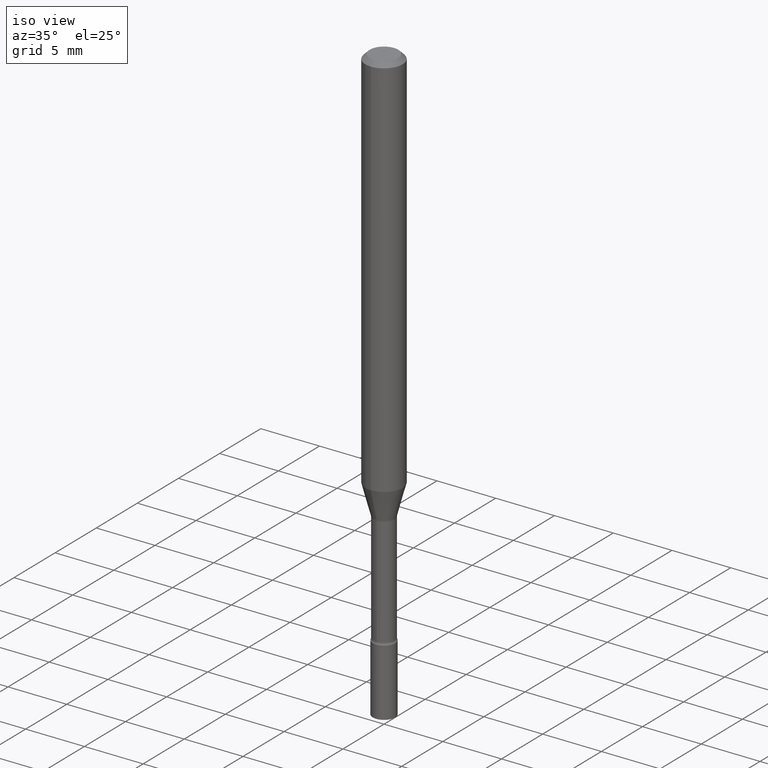
[diagram: clean part render]
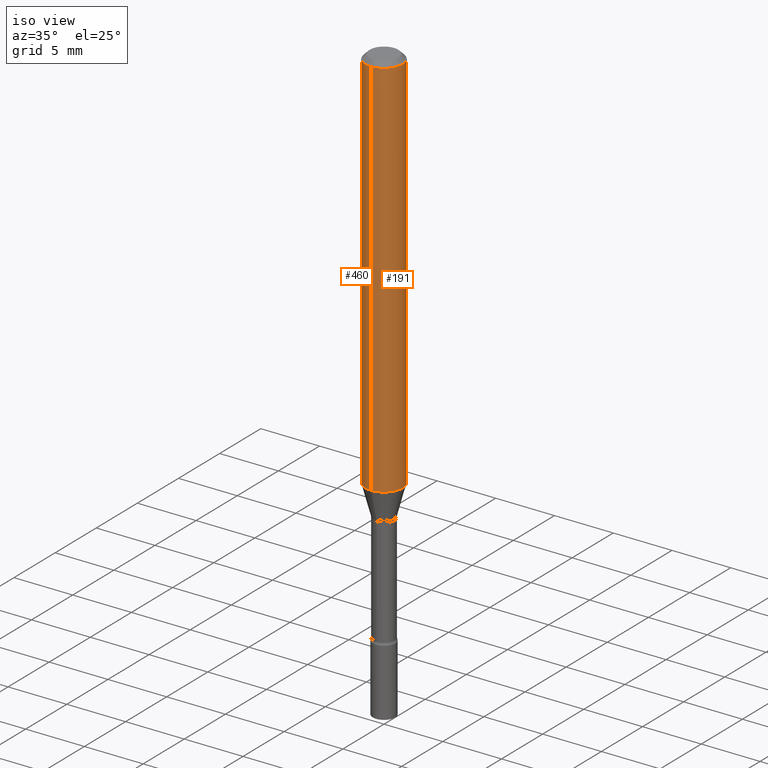
[diagram: same view with one multi-face feature highlighted, each face labeled with its STEP entity id]
A machine part, iso view. The highlighted faces form ONE feature: a constant-radius fillet chain: 2 tangent blend faces with common blend radius 1.5875 mm. The faces share edges in the B-rep.
Their STEP definitions:
[1] entity #460 (Cylinder):
#9 = VERTEX_POINT ( 'NONE', #94 ) ;
#40 = DIRECTION ( 'NONE',  ( -2.445457175457371238E-29, 3.491497994707285669E-15, 1.000000000000000000 ) ) ;
#41 = EDGE_LOOP ( 'NONE', ( #209, #178, #432, #296 ) ) ;
#53 = DIRECTION ( 'NONE',  ( -2.445457175457371238E-29, 3.491497994707285669E-15, 1.000000000000000000 ) ) ;
#77 = VERTEX_POINT ( 'NONE', #224 ) ;
#89 = VERTEX_POINT ( 'NONE', #388 ) ;
#90 = DIRECTION ( 'NONE',  ( -6.982962677686265922E-15, -1.000000000000000000, 3.491497994707285669E-15 ) ) ;
#93 = DIRECTION ( 'NONE',  ( -2.445457175457371238E-29, 3.491497994707285669E-15, 1.000000000000000000 ) ) ;
#94 = CARTESIAN_POINT ( 'NONE',  ( -4.364351673553601150E-16, -0.06250000000000456579, -1.298301615493748118 ) ) ;
#133 = LINE ( 'NONE', #404, #425 ) ;
#136 = CARTESIAN_POINT ( 'NONE',  ( 3.668185763186064161E-31, -5.237246992060938980E-17, -0.01500000000000003067 ) ) ;
#151 = DIRECTION ( 'NONE',  ( -6.982962677686265922E-15, -1.000000000000000000, 4.370956789862821150E-15 ) ) ;
#156 = VERTEX_POINT ( 'NONE', #343 ) ;
#161 = EDGE_CURVE ( 'NONE', #156, #9, #261, .T. ) ;
#167 = DIRECTION ( 'NONE',  ( -6.982962677686265922E-15, -1.000000000000000000, 3.483106191921935554E-15 ) ) ;
#178 = ORIENTED_EDGE ( 'NONE', *, *, #161, .T. ) ;
#206 = CARTESIAN_POINT ( 'NONE',  ( 4.440892098500625669E-16, 0.06250000000000000000, -2.182186246692053543E-16 ) ) ;
#209 = ORIENTED_EDGE ( 'NONE', *, *, #342, .F. ) ;
#224 = CARTESIAN_POINT ( 'NONE',  ( 4.440892098500945650E-16, 0.06249999999999995143, -0.01500000000000024751 ) ) ;
#251 = CIRCLE ( 'NONE', #329, 0.06250000000000000000 ) ;
#257 = CARTESIAN_POINT ( 'NONE',  ( 0.000000000000000000, 0.000000000000000000, 0.000000000000000000 ) ) ;
#261 = CIRCLE ( 'NONE', #437, 0.06250000000000000000 ) ;
#296 = ORIENTED_EDGE ( 'NONE', *, *, #510, .F. ) ;
#299 = AXIS2_PLACEMENT_3D ( 'NONE', #257, #93, #90 ) ;
#300 = DIRECTION ( 'NONE',  ( -2.445457175457371518E-29, 3.491497994707285669E-15, 1.000000000000000000 ) ) ;
#329 = AXIS2_PLACEMENT_3D ( 'NONE', #136, #53, #167 ) ;
#336 = DIRECTION ( 'NONE',  ( -2.445457175457371518E-29, 3.491497994707285669E-15, 1.000000000000000000 ) ) ;
#342 = EDGE_CURVE ( 'NONE', #156, #77, #409, .T. ) ;
#343 = CARTESIAN_POINT ( 'NONE',  ( 4.440892098500940720E-16, 0.06249999999999543421, -1.298301615493748562 ) ) ;
#360 = CARTESIAN_POINT ( 'NONE',  ( 3.174941001517083713E-29, -4.533017487021651812E-15, -1.298301615493748340 ) ) ;
#370 = CYLINDRICAL_SURFACE ( 'NONE', #299, 0.06250000000000000000 ) ;
#388 = CARTESIAN_POINT ( 'NONE',  ( -4.364351673553912750E-16, -0.06250000000000005551, -0.01499999999999981209 ) ) ;
#404 = CARTESIAN_POINT ( 'NONE',  ( -4.364351673553916201E-16, -0.06250000000000000000, 2.182186246692053543E-16 ) ) ;
#409 = LINE ( 'NONE', #206, #490 ) ;
#425 = VECTOR ( 'NONE', #336, 39.37007874015748143 ) ;
#432 = ORIENTED_EDGE ( 'NONE', *, *, #446, .T. ) ;
#437 = AXIS2_PLACEMENT_3D ( 'NONE', #360, #40, #151 ) ;
#446 = EDGE_CURVE ( 'NONE', #9, #89, #133, .T. ) ;
#447 = FACE_OUTER_BOUND ( 'NONE', #41, .T. ) ;
#460 = ADVANCED_FACE ( 'NONE', ( #447 ), #370, .T. ) ;
#490 = VECTOR ( 'NONE', #300, 39.37007874015748143 ) ;
#510 = EDGE_CURVE ( 'NONE', #77, #89, #251, .T. ) ;
[2] entity #191 (Cylinder):
#9 = VERTEX_POINT ( 'NONE', #94 ) ;
#21 = DIRECTION ( 'NONE',  ( -6.982962677686265922E-15, -1.000000000000000000, 4.370956789862821150E-15 ) ) ;
#77 = VERTEX_POINT ( 'NONE', #224 ) ;
#79 = ORIENTED_EDGE ( 'NONE', *, *, #342, .T. ) ;
#85 = AXIS2_PLACEMENT_3D ( 'NONE', #402, #333, #125 ) ;
#89 = VERTEX_POINT ( 'NONE', #388 ) ;
#94 = CARTESIAN_POINT ( 'NONE',  ( -4.364351673553601150E-16, -0.06250000000000456579, -1.298301615493748118 ) ) ;
#125 = DIRECTION ( 'NONE',  ( -6.982962677686265922E-15, -1.000000000000000000, 3.483106191921935554E-15 ) ) ;
#133 = LINE ( 'NONE', #404, #425 ) ;
#137 = ORIENTED_EDGE ( 'NONE', *, *, #389, .F. ) ;
#147 = EDGE_CURVE ( 'NONE', #9, #156, #172, .T. ) ;
#156 = VERTEX_POINT ( 'NONE', #343 ) ;
#164 = AXIS2_PLACEMENT_3D ( 'NONE', #222, #380, #21 ) ;
#171 = ORIENTED_EDGE ( 'NONE', *, *, #147, .T. ) ;
#172 = CIRCLE ( 'NONE', #164, 0.06250000000000000000 ) ;
#191 = ADVANCED_FACE ( 'NONE', ( #512 ), #430, .T. ) ;
#206 = CARTESIAN_POINT ( 'NONE',  ( 4.440892098500625669E-16, 0.06250000000000000000, -2.182186246692053543E-16 ) ) ;
#222 = CARTESIAN_POINT ( 'NONE',  ( 3.174941001517083713E-29, -4.533017487021651812E-15, -1.298301615493748340 ) ) ;
#224 = CARTESIAN_POINT ( 'NONE',  ( 4.440892098500945650E-16, 0.06249999999999995143, -0.01500000000000024751 ) ) ;
#250 = ORIENTED_EDGE ( 'NONE', *, *, #446, .F. ) ;
#271 = CIRCLE ( 'NONE', #85, 0.06250000000000000000 ) ;
#300 = DIRECTION ( 'NONE',  ( -2.445457175457371518E-29, 3.491497994707285669E-15, 1.000000000000000000 ) ) ;
#317 = DIRECTION ( 'NONE',  ( -2.445457175457371238E-29, 3.491497994707285669E-15, 1.000000000000000000 ) ) ;
#321 = CARTESIAN_POINT ( 'NONE',  ( 0.000000000000000000, 0.000000000000000000, 0.000000000000000000 ) ) ;
#323 = EDGE_LOOP ( 'NONE', ( #171, #79, #137, #250 ) ) ;
#333 = DIRECTION ( 'NONE',  ( -2.445457175457371238E-29, 3.491497994707285669E-15, 1.000000000000000000 ) ) ;
#336 = DIRECTION ( 'NONE',  ( -2.445457175457371518E-29, 3.491497994707285669E-15, 1.000000000000000000 ) ) ;
#342 = EDGE_CURVE ( 'NONE', #156, #77, #409, .T. ) ;
#343 = CARTESIAN_POINT ( 'NONE',  ( 4.440892098500940720E-16, 0.06249999999999543421, -1.298301615493748562 ) ) ;
#380 = DIRECTION ( 'NONE',  ( -2.445457175457371238E-29, 3.491497994707285669E-15, 1.000000000000000000 ) ) ;
#388 = CARTESIAN_POINT ( 'NONE',  ( -4.364351673553912750E-16, -0.06250000000000005551, -0.01499999999999981209 ) ) ;
#389 = EDGE_CURVE ( 'NONE', #89, #77, #271, .T. ) ;
#402 = CARTESIAN_POINT ( 'NONE',  ( 3.668185763186064161E-31, -5.237246992060938980E-17, -0.01500000000000003067 ) ) ;
#404 = CARTESIAN_POINT ( 'NONE',  ( -4.364351673553916201E-16, -0.06250000000000000000, 2.182186246692053543E-16 ) ) ;
#409 = LINE ( 'NONE', #206, #490 ) ;
#425 = VECTOR ( 'NONE', #336, 39.37007874015748143 ) ;
#430 = CYLINDRICAL_SURFACE ( 'NONE', #508, 0.06250000000000000000 ) ;
#446 = EDGE_CURVE ( 'NONE', #9, #89, #133, .T. ) ;
#479 = DIRECTION ( 'NONE',  ( -6.982962677686265922E-15, -1.000000000000000000, 3.491497994707285669E-15 ) ) ;
#490 = VECTOR ( 'NONE', #300, 39.37007874015748143 ) ;
#508 = AXIS2_PLACEMENT_3D ( 'NONE', #321, #317, #479 ) ;
#512 = FACE_OUTER_BOUND ( 'NONE', #323, .T. ) ;